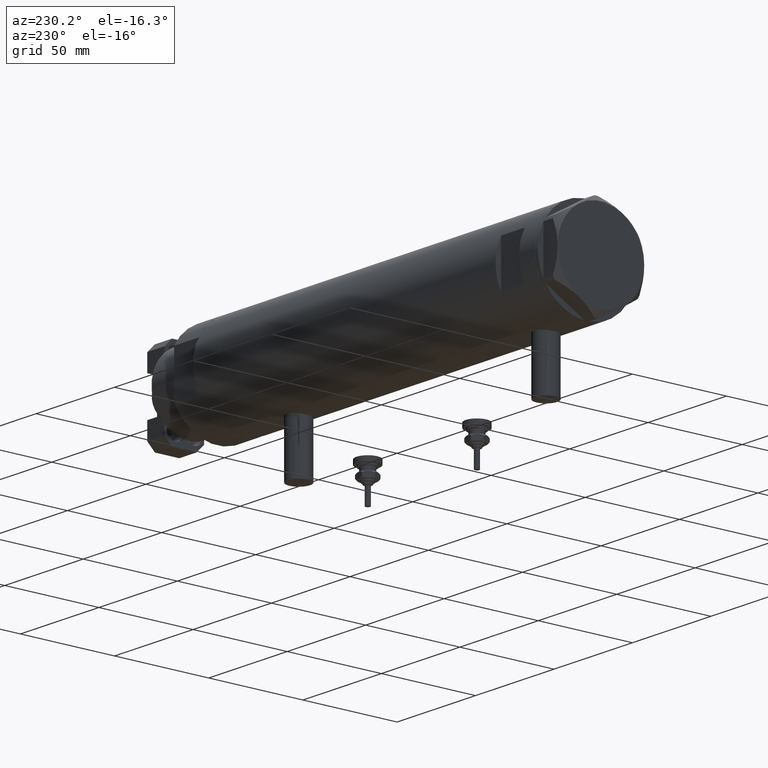
[diagram: clean part render]
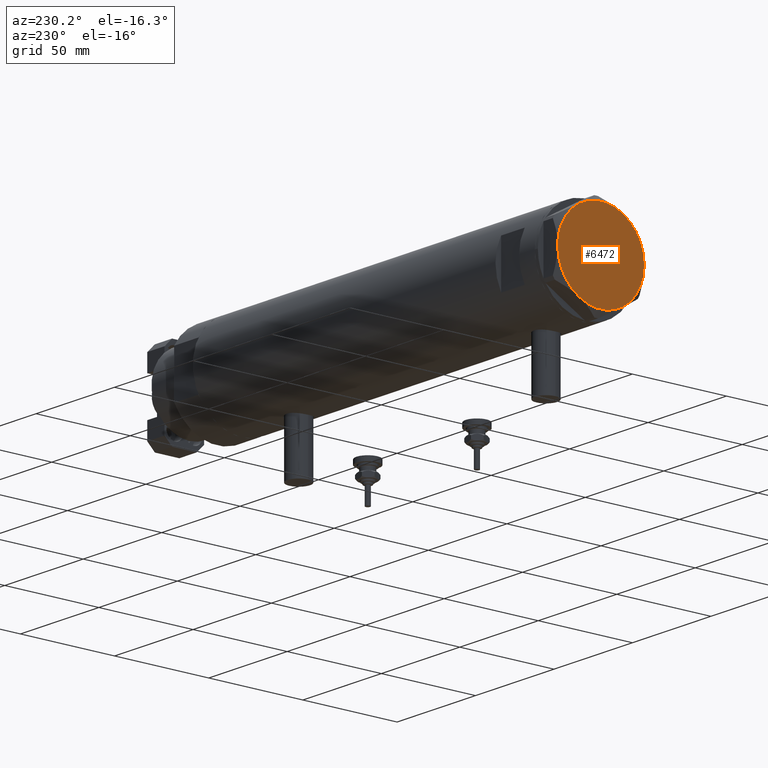
[diagram: same view with one face highlighted and labeled with its STEP entity id]
A machine part, auxiliary view. The second image highlights one B-rep face of the part: STEP entity #6472.
In plain terms, the highlighted planar face has unit normal (-1, -0, 0).
Its self-contained STEP definition (entity closure, byte-faithful):
#526 = CARTESIAN_POINT ( 'NONE',  ( 0.000000000000000000, 0.000000000000000000, 9.000000000000000000 ) ) ;
#670 = CARTESIAN_POINT ( 'NONE',  ( 0.000000000000000000, 0.000000000000000000, 9.000000000000000000 ) ) ;
#755 = CARTESIAN_POINT ( 'NONE',  ( -11.50000000000004441, 19.91858428704211548, 9.000000000000000000 ) ) ;
#835 = DIRECTION ( 'NONE',  ( 0.000000000000000000, 0.000000000000000000, 1.000000000000000000 ) ) ;
#919 = CARTESIAN_POINT ( 'NONE',  ( -23.00000000000004619, -8.112498833180673323E-14, 9.000000000000000000 ) ) ;
#992 = DIRECTION ( 'NONE',  ( 0.000000000000000000, 0.000000000000000000, 1.000000000000000000 ) ) ;
#1031 = CIRCLE ( 'NONE', #6620, 23.00000000000004619 ) ;
#1285 = ORIENTED_EDGE ( 'NONE', *, *, #3369, .T. ) ;
#1297 = VERTEX_POINT ( 'NONE', #6616 ) ;
#1538 = CIRCLE ( 'NONE', #2461, 23.00000000000004619 ) ;
#1565 = ORIENTED_EDGE ( 'NONE', *, *, #5719, .T. ) ;
#1582 = DIRECTION ( 'NONE',  ( 0.000000000000000000, 0.000000000000000000, 1.000000000000000000 ) ) ;
#1746 = DIRECTION ( 'NONE',  ( 0.000000000000000000, 0.000000000000000000, 1.000000000000000000 ) ) ;
#1811 = CARTESIAN_POINT ( 'NONE',  ( -11.49999999999990585, -19.91858428704219364, 9.000000000000000000 ) ) ;
#2114 = VERTEX_POINT ( 'NONE', #6934 ) ;
#2183 = AXIS2_PLACEMENT_3D ( 'NONE', #5525, #4983, #4870 ) ;
#2336 = CARTESIAN_POINT ( 'NONE',  ( 0.000000000000000000, 0.000000000000000000, 9.000000000000000000 ) ) ;
#2461 = AXIS2_PLACEMENT_3D ( 'NONE', #6953, #835, #2995 ) ;
#2602 = EDGE_LOOP ( 'NONE', ( #1285, #1565, #5600, #4459, #3981, #5631 ) ) ;
#2641 = CIRCLE ( 'NONE', #2857, 23.00000000000004619 ) ;
#2828 = DIRECTION ( 'NONE',  ( 1.000000000000000000, 0.000000000000000000, 0.000000000000000000 ) ) ;
#2857 = AXIS2_PLACEMENT_3D ( 'NONE', #2336, #1746, #6547 ) ;
#2976 = EDGE_CURVE ( 'NONE', #6720, #6153, #1538, .T. ) ;
#2995 = DIRECTION ( 'NONE',  ( 1.000000000000000000, 0.000000000000000000, 0.000000000000000000 ) ) ;
#3175 = DIRECTION ( 'NONE',  ( 0.000000000000000000, 0.000000000000000000, 1.000000000000000000 ) ) ;
#3179 = AXIS2_PLACEMENT_3D ( 'NONE', #4862, #3175, #4295 ) ;
#3321 = DIRECTION ( 'NONE',  ( 0.000000000000000000, 0.000000000000000000, 1.000000000000000000 ) ) ;
#3328 = FACE_OUTER_BOUND ( 'NONE', #2602, .T. ) ;
#3361 = CARTESIAN_POINT ( 'NONE',  ( 0.000000000000000000, 0.000000000000000000, 9.000000000000000000 ) ) ;
#3369 = EDGE_CURVE ( 'NONE', #1297, #2114, #4770, .T. ) ;
#3771 = AXIS2_PLACEMENT_3D ( 'NONE', #670, #1582, #4377 ) ;
#3803 = DIRECTION ( 'NONE',  ( 1.000000000000000000, 0.000000000000000000, 0.000000000000000000 ) ) ;
#3981 = ORIENTED_EDGE ( 'NONE', *, *, #4789, .T. ) ;
#4227 = CIRCLE ( 'NONE', #3771, 23.00000000000004619 ) ;
#4295 = DIRECTION ( 'NONE',  ( 1.000000000000000000, 0.000000000000000000, 0.000000000000000000 ) ) ;
#4377 = DIRECTION ( 'NONE',  ( 1.000000000000000000, 0.000000000000000000, 0.000000000000000000 ) ) ;
#4459 = ORIENTED_EDGE ( 'NONE', *, *, #6453, .T. ) ;
#4479 = PLANE ( 'NONE',  #2183 ) ;
#4668 = EDGE_CURVE ( 'NONE', #5888, #1297, #4788, .T. ) ;
#4770 = CIRCLE ( 'NONE', #5688, 23.00000000000004619 ) ;
#4788 = CIRCLE ( 'NONE', #3179, 23.00000000000004619 ) ;
#4789 = EDGE_CURVE ( 'NONE', #6345, #5888, #1031, .T. ) ;
#4862 = CARTESIAN_POINT ( 'NONE',  ( 0.000000000000000000, 0.000000000000000000, 9.000000000000000000 ) ) ;
#4870 = DIRECTION ( 'NONE',  ( 1.000000000000000000, 0.000000000000000000, -0.000000000000000000 ) ) ;
#4983 = DIRECTION ( 'NONE',  ( 0.000000000000000000, 0.000000000000000000, 1.000000000000000000 ) ) ;
#5525 = CARTESIAN_POINT ( 'NONE',  ( 0.000000000000000000, 0.000000000000000000, 9.000000000000000000 ) ) ;
#5600 = ORIENTED_EDGE ( 'NONE', *, *, #2976, .T. ) ;
#5631 = ORIENTED_EDGE ( 'NONE', *, *, #4668, .T. ) ;
#5688 = AXIS2_PLACEMENT_3D ( 'NONE', #526, #992, #3803 ) ;
#5719 = EDGE_CURVE ( 'NONE', #2114, #6720, #2641, .T. ) ;
#5888 = VERTEX_POINT ( 'NONE', #1811 ) ;
#6153 = VERTEX_POINT ( 'NONE', #755 ) ;
#6345 = VERTEX_POINT ( 'NONE', #919 ) ;
#6453 = EDGE_CURVE ( 'NONE', #6153, #6345, #4227, .T. ) ;
#6472 = ADVANCED_FACE ( 'NONE', ( #3328 ), #4479, .T. ) ;
#6547 = DIRECTION ( 'NONE',  ( 1.000000000000000000, 0.000000000000000000, 0.000000000000000000 ) ) ;
#6616 = CARTESIAN_POINT ( 'NONE',  ( 11.50000000000018296, -19.91858428704203732, 9.000000000000000000 ) ) ;
#6620 = AXIS2_PLACEMENT_3D ( 'NONE', #3361, #3321, #2828 ) ;
#6720 = VERTEX_POINT ( 'NONE', #6866 ) ;
#6866 = CARTESIAN_POINT ( 'NONE',  ( 11.49999999999990408, 19.91858428704219364, 9.000000000000000000 ) ) ;
#6934 = CARTESIAN_POINT ( 'NONE',  ( 22.99999999999995026, 2.373657066004705010E-13, 9.000000000000000000 ) ) ;
#6953 = CARTESIAN_POINT ( 'NONE',  ( 0.000000000000000000, 0.000000000000000000, 9.000000000000000000 ) ) ;